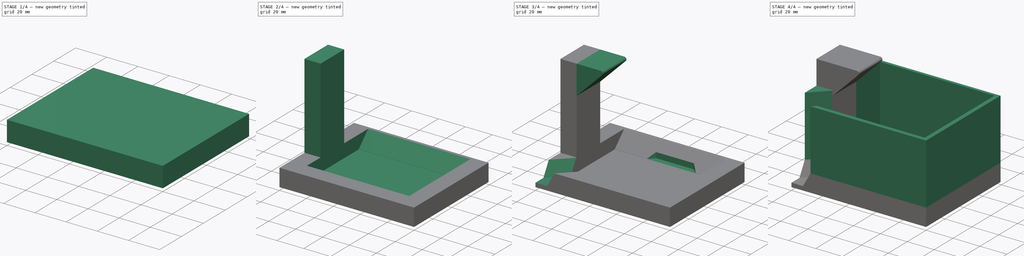
[diagram: build sequence overview — one tinted view per stage of 4, left to right]
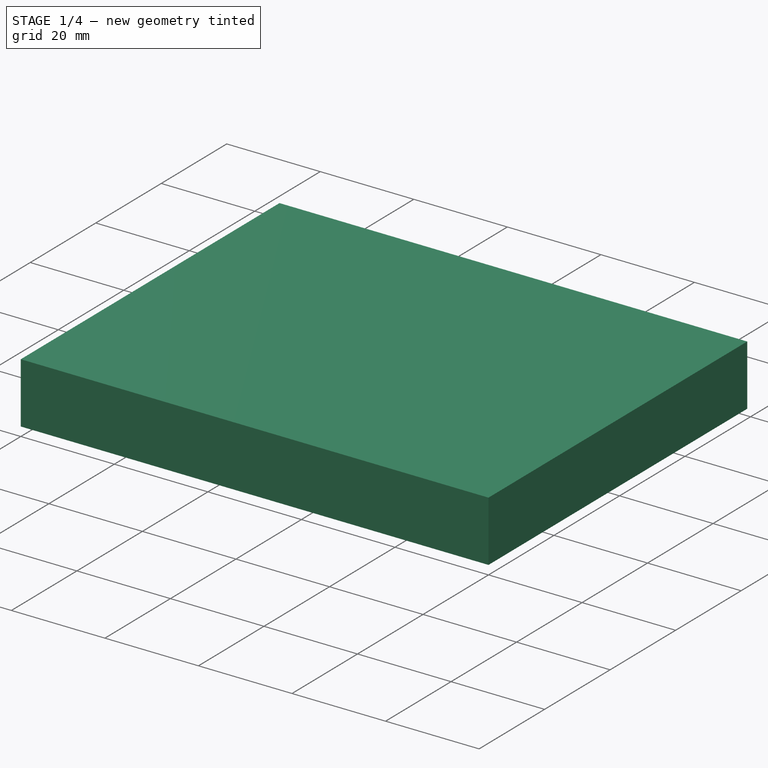
[diagram: stage 1 of 4 — iso view after this stage's code; geometry added in this stage tinted green]
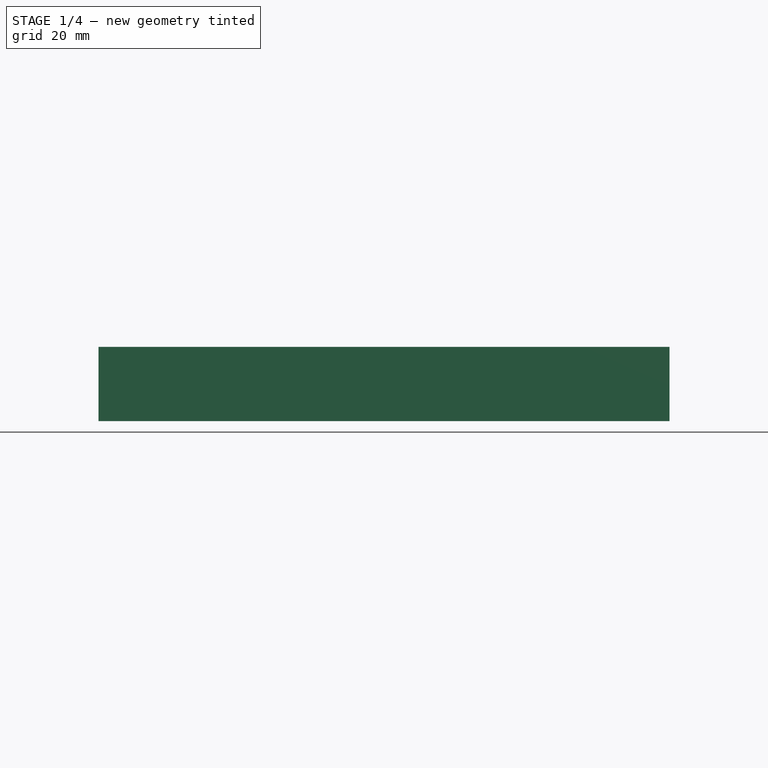
[diagram: stage 1 of 4 — front view after this stage's code; geometry added in this stage tinted green]
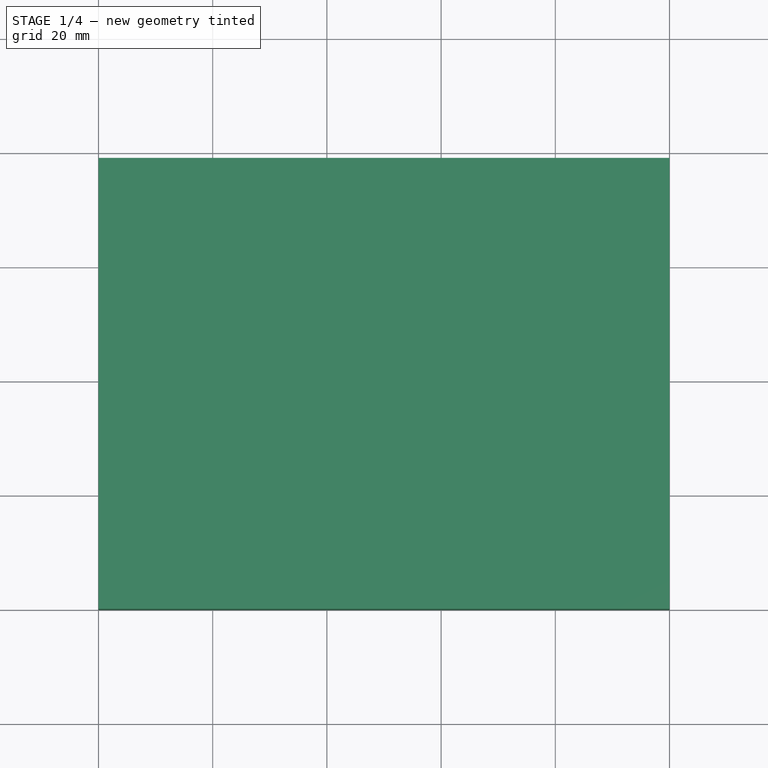
[diagram: stage 1 of 4 — top view after this stage's code; geometry added in this stage tinted green]
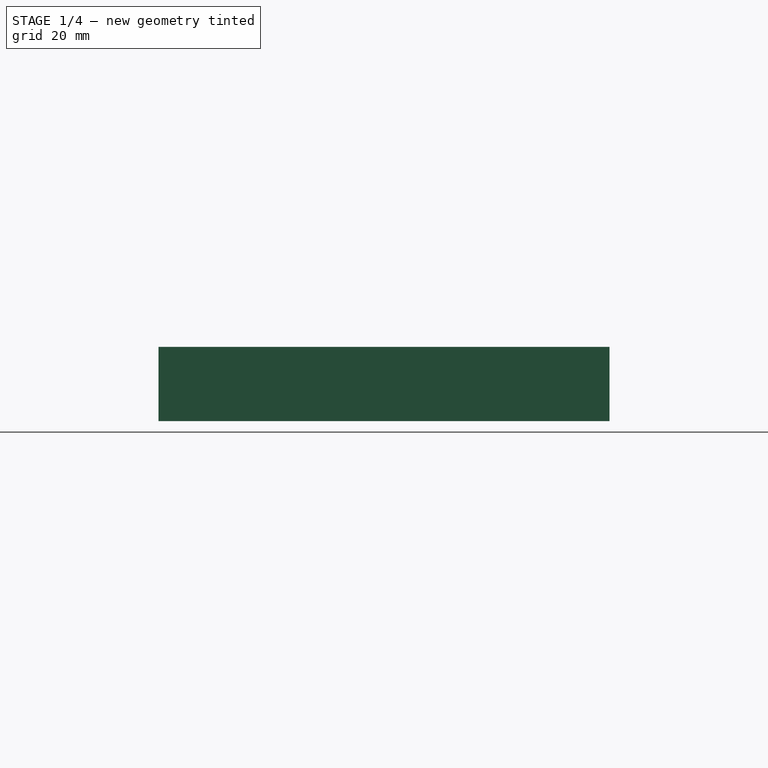
[diagram: stage 1 of 4 — right view after this stage's code; geometry added in this stage tinted green]
FCSTD DOCUMENT  (FreeCAD 0.19R24415 (Git))
Label: bialettiHolderForGrinder
License: All rights reserved
LicenseURL: http://en.wikipedia.org/wiki/All_rights_reserved
objects: Sketcher::SketchObject×7, PartDesign::Pad×5, PartDesign::Pocket×2, PartDesign::Chamfer×2, App::MeasureDistance×2, Spreadsheet::Sheet×1, PartDesign::SubtractiveLoft×1, PartDesign::Body×1
note: 28 computed .brp shape members not serialized (recipe doc carries the construction recipe); baked Part::Feature solids carry a one-line shape summary decoded from their .brp

FEATURE [Spreadsheet::Sheet] Spreadsheet
  cells = A1=bialetti_width; B1(bialetti_width)==66mm; A2=height; B2(height)==76mm - base_thickness; A3=width; B3(width)==79mm; A4=handle_width; B4(handle_width)==25mm; A5=handle_position; B5(handle_position)==40mm; A6=handle_notch_depth; B6(handle_notch_depth)==depth - handle_notch_position - side_thickness; A7=handle_notch_thickness; B7(handle_notch_thickness)==10mm; C7=not used; A8=handle_notch_position; B8(handle_notch_position)==70mm; A9=base_thickness; B9(base_thickness)==3mm; A10=side_height; B10(side_height)==10mm; A11=side_thickness; B11(side_thickness)==12mm; A12=bialetti_position; B12(bialetti_position)==8mm; A13=depth; B13(depth)==100mm; A14=bialett_position_x; B14(bialett_position_x)==depth - 80mm; A15=exit_width; B15(exit_width)==12mm; A16=exit_width_top; B16(exit_width_top)==20mm
FEATURE [Sketcher::SketchObject] Sketch
  FullyConstrained = true
  MapMode = 5
  Support = -> [XY_Plane]
  expr: Constraints[9] = Spreadsheet.width
  expr: Constraints[8] = Spreadsheet.depth
  sketch-geometry (4):
    g0: LineSegment StartX=0 StartY=79 StartZ=0 EndX=100 EndY=79 EndZ=0
    g1: LineSegment StartX=100 StartY=79 StartZ=0 EndX=100 EndY=0 EndZ=0
    g2: LineSegment StartX=100 StartY=0 StartZ=0 EndX=0 EndY=0 EndZ=0
    g3: LineSegment StartX=0 StartY=0 StartZ=0 EndX=0 EndY=79 EndZ=0
  constraints (11):
    c: Coincident(g0,g1)
    c: Coincident(g1,g2)
    c: Coincident(g2,g3)
    c: Coincident(g3,g0)
    c: Horizontal(g0)
    c: Horizontal(g2)
    c: Vertical(g1)
    c: Vertical(g3)
    c: DistanceX(g0,g0) = 100
    c: DistanceY(g3,g3) = 79
    c: Coincident(g2,g-1)
FEATURE [PartDesign::Pad] Pad
  AllowMultiFace = false
  Direction = (1,1,1)
  Length = 3
  Length2 = 100
  Profile = -> Sketch
  Reversed = true
  Type = 0
  expr: Length = Spreadsheet.base_thickness
FEATURE [PartDesign::Pad] Pad001
  AllowMultiFace = false
  BaseFeature = -> Pad
  Direction = (1,1,1)
  Length = 10
  Length2 = 100
  Profile = -> Pad [Face5]
  Type = 0
  expr: Length = Spreadsheet.side_height
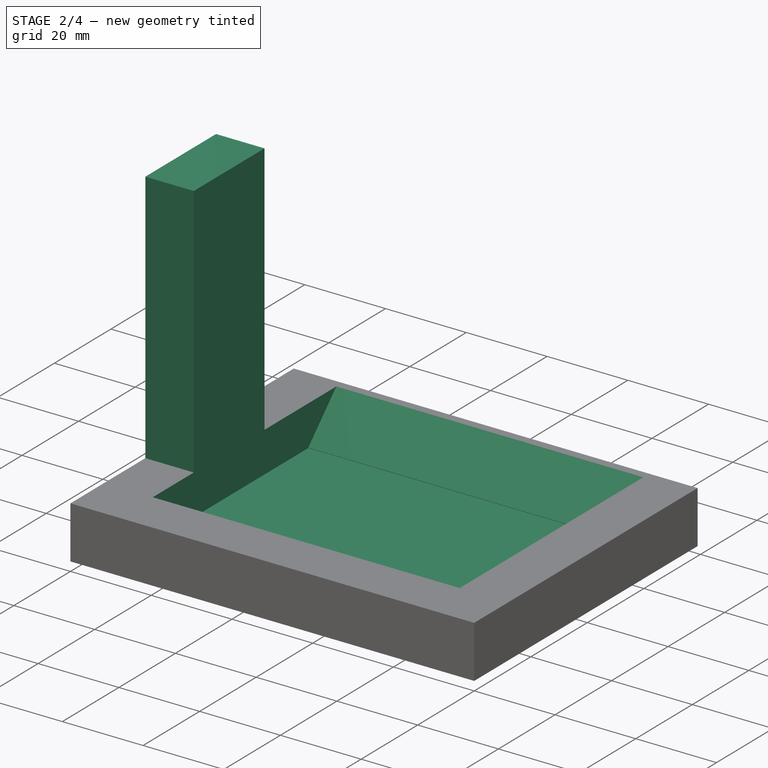
[diagram: stage 2 of 4 — iso view after this stage's code; geometry added in this stage tinted green]
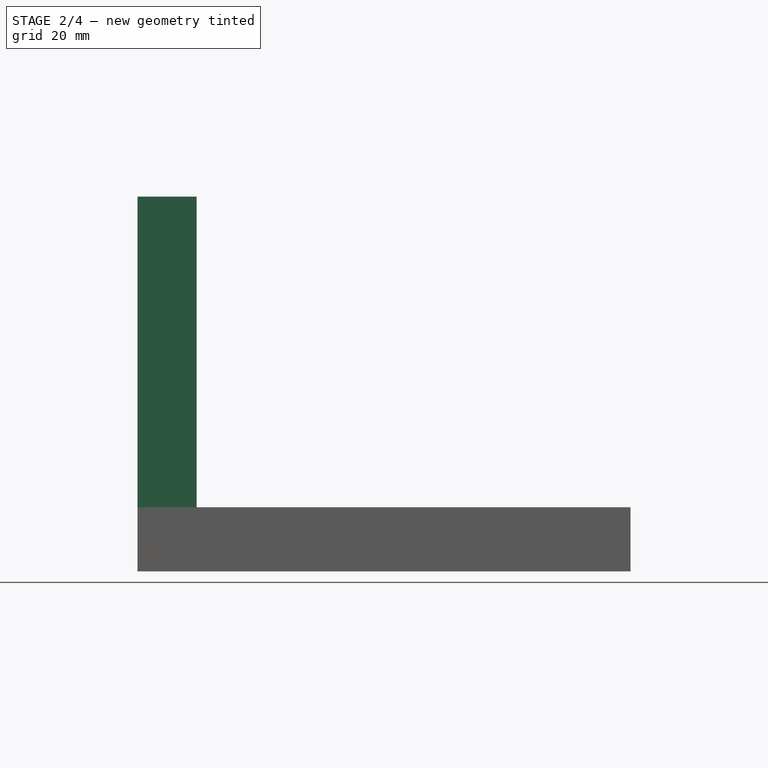
[diagram: stage 2 of 4 — front view after this stage's code; geometry added in this stage tinted green]
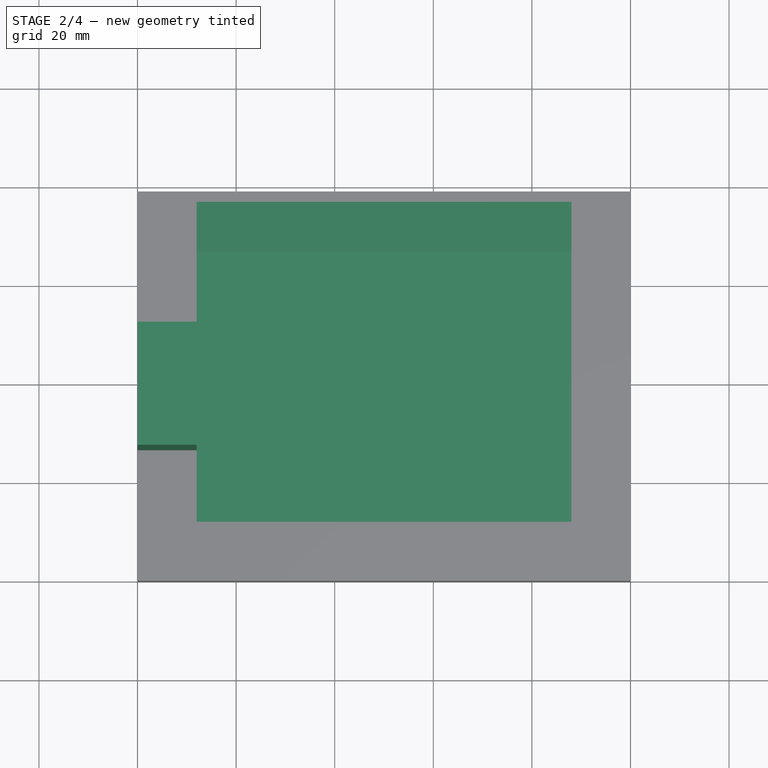
[diagram: stage 2 of 4 — top view after this stage's code; geometry added in this stage tinted green]
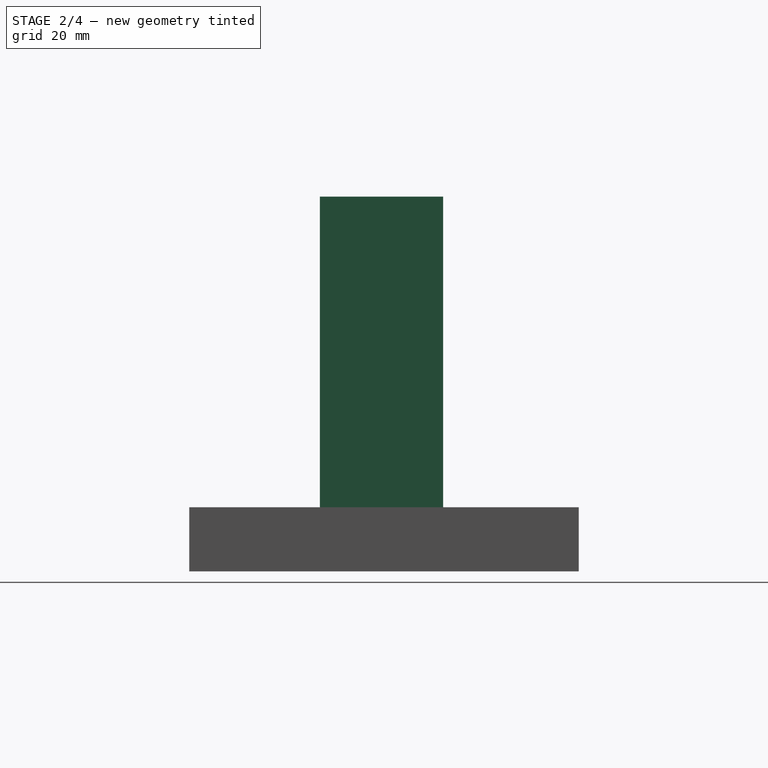
[diagram: stage 2 of 4 — right view after this stage's code; geometry added in this stage tinted green]
FEATURE [Sketcher::SketchObject] Sketch002
  FullyConstrained = true
  MapMode = 5
  Placement = pos=(0,0,10) rot=(0,0,1;0rad)
  Support = -> [Pad001]
  expr: Constraints[10] = Spreadsheet.width - 2 * Spreadsheet.side_thickness
  expr: Constraints[11] = Spreadsheet.depth - 2 * Spreadsheet.side_thickness
  expr: Constraints[9] = Spreadsheet.side_thickness
  expr: Constraints[8] = Spreadsheet.side_thickness
  sketch-geometry (4):
    g0: LineSegment StartX=12 StartY=67 StartZ=0 EndX=88 EndY=67 EndZ=0
    g1: LineSegment StartX=88 StartY=67 StartZ=0 EndX=88 EndY=12 EndZ=0
    g2: LineSegment StartX=88 StartY=12 StartZ=0 EndX=12 EndY=12 EndZ=0
    g3: LineSegment StartX=12 StartY=12 StartZ=0 EndX=12 EndY=67 EndZ=0
  constraints (12):
    c: Coincident(g0,g1)
    c: Coincident(g1,g2)
    c: Coincident(g2,g3)
    c: Coincident(g3,g0)
    c: Horizontal(g0)
    c: Horizontal(g2)
    c: Vertical(g1)
    c: Vertical(g3)
    c: DistanceX(g-1,g2) = 12
    c: DistanceY(g-1,g2) = 12
    c: DistanceY(g3,g3) = 55
    c: DistanceX(g0,g0) = 76
FEATURE [PartDesign::Pocket] Pocket
  AllowMultiFace = false
  BaseFeature = -> Pad001
  Length = 10
  Length2 = 100
  Profile = -> Sketch002
  Type = 0
  expr: Length = Spreadsheet.side_height
FEATURE [Sketcher::SketchObject] Sketch003  label="handle"
  FullyConstrained = true
  MapMode = 5
  Placement = pos=(0,0,10) rot=(0,0,1;0rad)
  Support = -> [Pocket]
  expr: Constraints[10] = Spreadsheet.side_thickness
  expr: Constraints[9] = Spreadsheet.handle_width
  expr: .Constraints.handle_position = Spreadsheet.width - Spreadsheet.handle_position + Spreadsheet.handle_width / 2
  sketch-geometry (4):
    g0: LineSegment StartX=0 StartY=51.5 StartZ=0 EndX=12 EndY=51.5 EndZ=0
    g1: LineSegment StartX=12 StartY=51.5 StartZ=0 EndX=12 EndY=26.5 EndZ=0
    g2: LineSegment StartX=12 StartY=26.5 StartZ=0 EndX=0 EndY=26.5 EndZ=0
    g3: LineSegment StartX=0 StartY=26.5 StartZ=0 EndX=0 EndY=51.5 EndZ=0
  constraints (12):
    c: Coincident(g0,g1)
    c: Coincident(g1,g2)
    c: Coincident(g2,g3)
    c: Coincident(g3,g0)
    c: Horizontal(g0)
    c: Horizontal(g2)
    c: Vertical(g1)
    c: Vertical(g3)
    c: DistanceY(g-1,g0) = 51.5  'handle_position'
    c: DistanceY(g1,g1) = 25
    c: DistanceX(g0,g0) = 12
    c: DistanceX(g2,g-1) = 0
FEATURE [Sketcher::SketchObject] Sketch004
  FullyConstrained = true
  expr: Constraints[23] = Spreadsheet.bialett_position_x
  expr: Constraints[18] = Spreadsheet.width - Spreadsheet.bialetti_position
  expr: Constraints[17] = .Constraints.socket_width
  expr: .Constraints.socket_width = Spreadsheet.bialetti_width + 2mm
  sketch-geometry (8):
    g0: LineSegment StartX=20 StartY=51.0833 StartZ=0 EndX=39.9167 EndY=71 EndZ=0
    g1: LineSegment StartX=39.9167 StartY=71 StartZ=0 EndX=68.0833 EndY=71 EndZ=0
    g2: LineSegment StartX=68.0833 StartY=71 StartZ=0 EndX=88 EndY=51.0833 EndZ=0
    g3: LineSegment StartX=20 StartY=51.0833 StartZ=0 EndX=20 EndY=22.9167 EndZ=0
    g4: LineSegment StartX=20 StartY=22.9167 StartZ=0 EndX=39.9167 EndY=3 EndZ=0
    g5: LineSegment StartX=39.9167 StartY=3 StartZ=0 EndX=68.0833 EndY=3 EndZ=0
    g6: LineSegment StartX=68.0833 StartY=3 StartZ=0 EndX=88 EndY=22.9167 EndZ=0
    g7: LineSegment StartX=88 StartY=22.9167 StartZ=0 EndX=88 EndY=51.0833 EndZ=0
  constraints (24):
    c: Coincident(g0,g1)
    c: Coincident(g1,g2)
    c: Horizontal(g1)
    c: Angle(g0) = 0.785398
    c: Angle(g2) = -0.785398
    c: DistanceX(g0,g2) = 68  'socket_width'
    c: Coincident(g3,g4)
    c: Coincident(g4,g5)
    c: Coincident(g5,g6)
    c: Coincident(g6,g7)
    c: Coincident(g2,g7)
    c: Coincident(g0,g3)
    c: Vertical(g3)
    c: Vertical(g7)
    c: Horizontal(g5)
    c: Angle(g6) = 0.785398
    c: Angle(g4) = -0.785398
    c: DistanceY(g4,g0) = 68
    c: DistanceY(g-1,g0) = 71
    c: Equal(g3,g5)
    c: Equal(g2,g0)
    c: Equal(g1,g3)
    c: Equal(g3,g4)
    c: DistanceX(g3) = 20
FEATURE [Sketcher::SketchObject] Sketch006  label="exit_bottom"
  FullyConstrained = true
  MapMode = 5
  Support = -> [XY_Plane]
  expr: Constraints[9] = <<exit_top>>.Constraints.exit_depth
  expr: Constraints[11] = Spreadsheet.exit_width / 2
  expr: Constraints[8] = Spreadsheet.exit_width
  sketch-geometry (4):
    g0: LineSegment StartX=-4.24264 StartY=4.24264 StartZ=0 EndX=14.8492 EndY=23.3345 EndZ=0
    g1: LineSegment StartX=14.8492 StartY=23.3345 StartZ=0 EndX=23.3345 EndY=14.8492 EndZ=0
    g2: LineSegment StartX=23.3345 StartY=14.8492 StartZ=0 EndX=4.24264 EndY=-4.24264 EndZ=0
    g3: LineSegment StartX=4.24264 StartY=-4.24264 StartZ=0 EndX=-4.24264 EndY=4.24264 EndZ=0
  constraints (12):
    c: Coincident(g0,g1)
    c: Coincident(g1,g2)
    c: Coincident(g2,g3)
    c: Coincident(g3,g0)
    c: Parallel(g2,g0)
    c: Angle(g3,g0) = 1.5708
    c: Angle(g0) = 0.785398
    c: PointOnObject(g-1,g3)
    c: Distance(g3) = 12
    c: Distance(g2) = 27
    c: Parallel(g3,g1)
    c: Distance(g-1,g0) = 6
FEATURE [PartDesign::Chamfer] Chamfer001
  Angle = 45
  Base = -> Pocket [Edge21]
  BaseFeature = -> Pocket
  ChamferType = 0
  FlipDirection = false
  Size = 9.9
  Size2 = 1
  SupportTransform = false
  expr: Size = Spreadsheet.side_height - 0.1mm
FEATURE [PartDesign::Pad] Pad002
  AllowMultiFace = false
  BaseFeature = -> Chamfer001
  Direction = (1,1,1)
  Length = 63
  Length2 = 100
  Profile = -> Sketch003
  Type = 0
  expr: Length = Spreadsheet.height - Spreadsheet.side_height
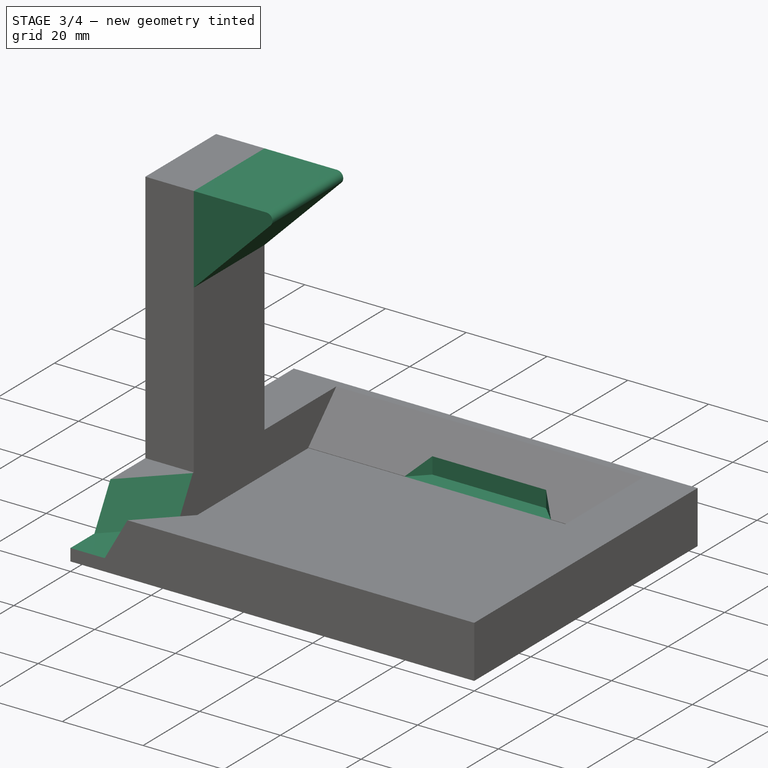
[diagram: stage 3 of 4 — iso view after this stage's code; geometry added in this stage tinted green]
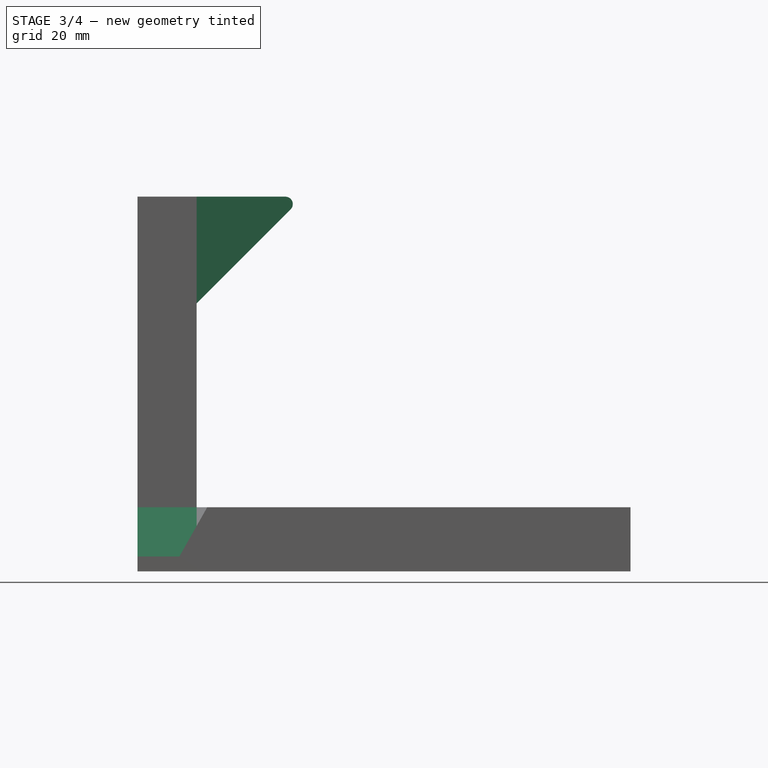
[diagram: stage 3 of 4 — front view after this stage's code; geometry added in this stage tinted green]
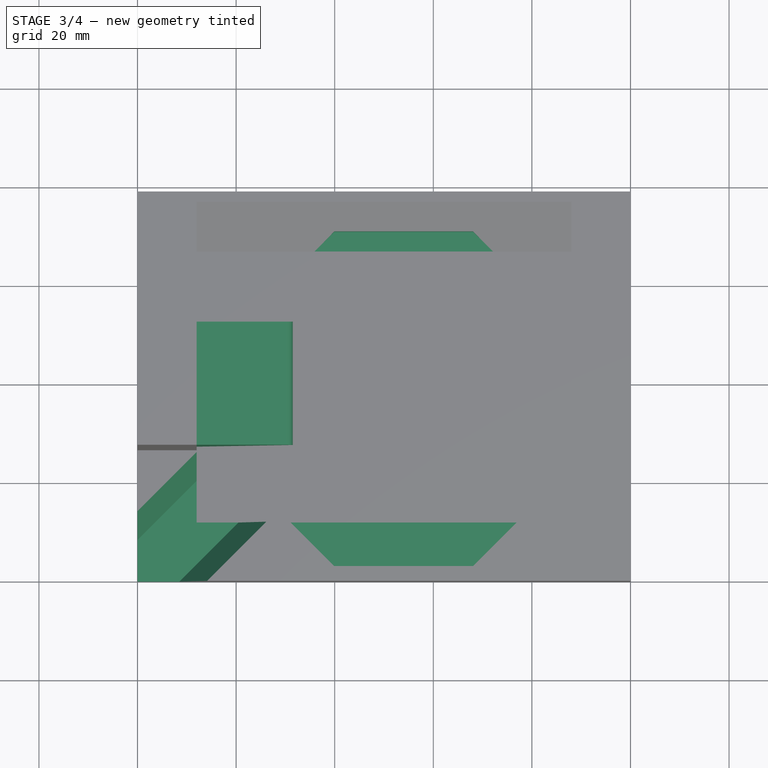
[diagram: stage 3 of 4 — top view after this stage's code; geometry added in this stage tinted green]
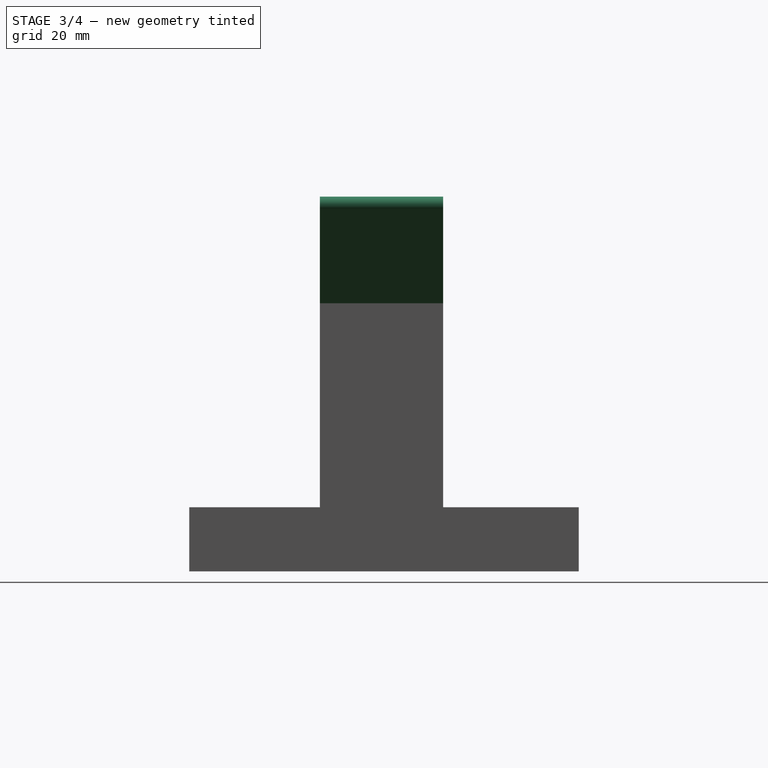
[diagram: stage 3 of 4 — right view after this stage's code; geometry added in this stage tinted green]
FEATURE [PartDesign::Pocket] Pocket001
  AllowMultiFace = false
  BaseFeature = -> Pad002
  Length = 5
  Length2 = 100
  Profile = -> Sketch004
  Reversed = true
  Type = 1
FEATURE [Sketcher::SketchObject] Sketch007  label="exit_top"
  FullyConstrained = true
  Placement = pos=(0,0,10) rot=(0,0,1;0rad)
  Support = -> [XY_Plane]
  expr: .Placement.Base.z = Spreadsheet.side_height
  expr: Constraints[11] = Spreadsheet.exit_width_top / 2
  expr: Constraints[10] = Spreadsheet.exit_width_top
  sketch-geometry (4):
    g0: LineSegment StartX=-7.07107 StartY=7.07107 StartZ=0 EndX=12.0208 EndY=26.163 EndZ=0
    g1: LineSegment StartX=12.0208 StartY=26.163 StartZ=0 EndX=26.163 EndY=12.0208 EndZ=0
    g2: LineSegment StartX=26.163 StartY=12.0208 StartZ=0 EndX=7.07107 EndY=-7.07107 EndZ=0
    g3: LineSegment StartX=7.07107 StartY=-7.07107 StartZ=0 EndX=-7.07107 EndY=7.07107 EndZ=0
  constraints (12):
    c: Coincident(g0,g1)
    c: Coincident(g1,g2)
    c: Coincident(g2,g3)
    c: Coincident(g3,g0)
    c: PointOnObject(g-1,g3)
    c: Angle(g0) = 0.785398
    c: Parallel(g0,g2)
    c: Equal(g0,g2)
    c: Angle(g3,g0) = 1.5708
    c: Distance(g0) = 27  'exit_depth'
    c: Distance(g3) = 20
    c: Distance(g-1,g0) = 10
FEATURE [PartDesign::SubtractiveLoft] SubtractiveLoft
  AllowMultiFace = false
  BaseFeature = -> Pocket001
  Closed = false
  Profile = -> Sketch006
  Ruled = false
  Sections = -> [Sketch007]
FEATURE [Sketcher::SketchObject] Sketch008
  AttachmentOffset = pos=(0,0,-39) rot=(0,0,1;0rad)
  FullyConstrained = true
  MapMode = 5
  Placement = pos=(0,39,8.7e-15) rot=(1,0,0;1.5708rad)
  Support = -> [XZ_Plane]
  expr: .AttachmentOffset.Base.z = -Spreadsheet.width + Spreadsheet.handle_position
  expr: Constraints[7] = Spreadsheet.height
  expr: Constraints[9] = Spreadsheet.handle_notch_depth
  expr: Constraints[6] = Spreadsheet.side_thickness
  sketch-geometry (4):
    g0: LineSegment StartX=12 StartY=73 StartZ=0 EndX=30 EndY=73 EndZ=0
    g1: LineSegment StartX=31.0607 StartY=70.4393 StartZ=0 EndX=12 EndY=51.3787 EndZ=0
    g2: LineSegment StartX=12 StartY=51.3787 StartZ=0 EndX=12 EndY=73 EndZ=0
    g3: ArcOfCircle CenterX=30 CenterY=71.5 CenterZ=0 NormalX=0 NormalY=0 NormalZ=1 AngleXU=0 Radius=1.5 StartAngle=5.49779 EndAngle=7.85398
  constraints (11):
    c: Coincident(g1,g2)
    c: Coincident(g2,g0)
    c: Vertical(g2)
    c: Horizontal(g0)
    c: Tangent(g0,g3) = 1.5708
    c: Tangent(g1,g3) = 1.5708
    c: DistanceX(g-1,g0) = 12
    c: DistanceY(g-1,g0) = 73
    c: Angle(g1,g2) = 0.785398
    c: DistanceX(g0,g0) = 18
    c: Radius(g3) = 1.5
FEATURE [PartDesign::Pad] Pad003
  AllowMultiFace = false
  BaseFeature = -> SubtractiveLoft
  Direction = (1,1,1)
  Length = 25
  Length2 = 100
  Midplane = true
  Profile = -> Sketch008
  Type = 0
  expr: Length = Spreadsheet.handle_width
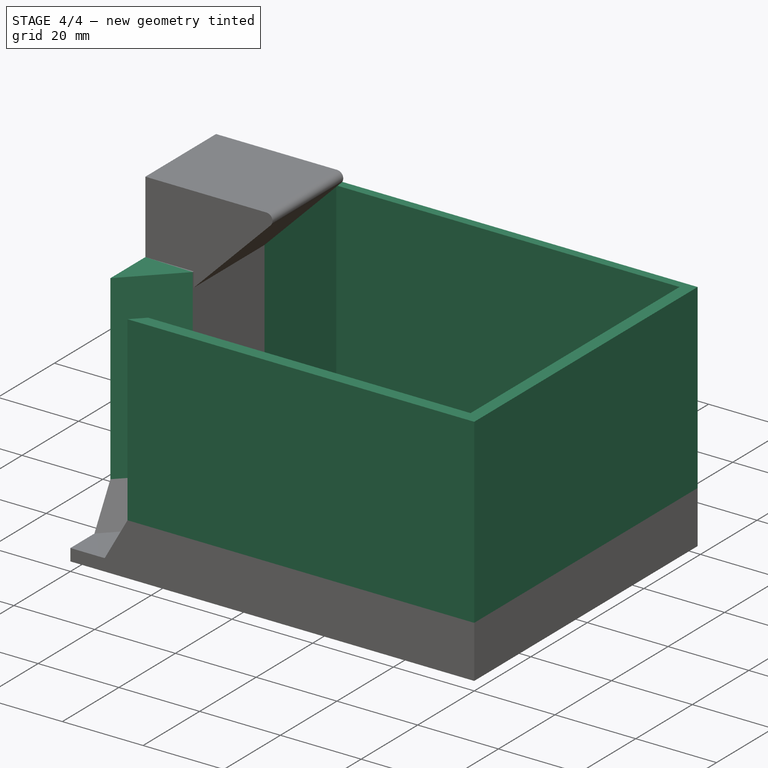
[diagram: stage 4 of 4 — iso view after this stage's code; geometry added in this stage tinted green]
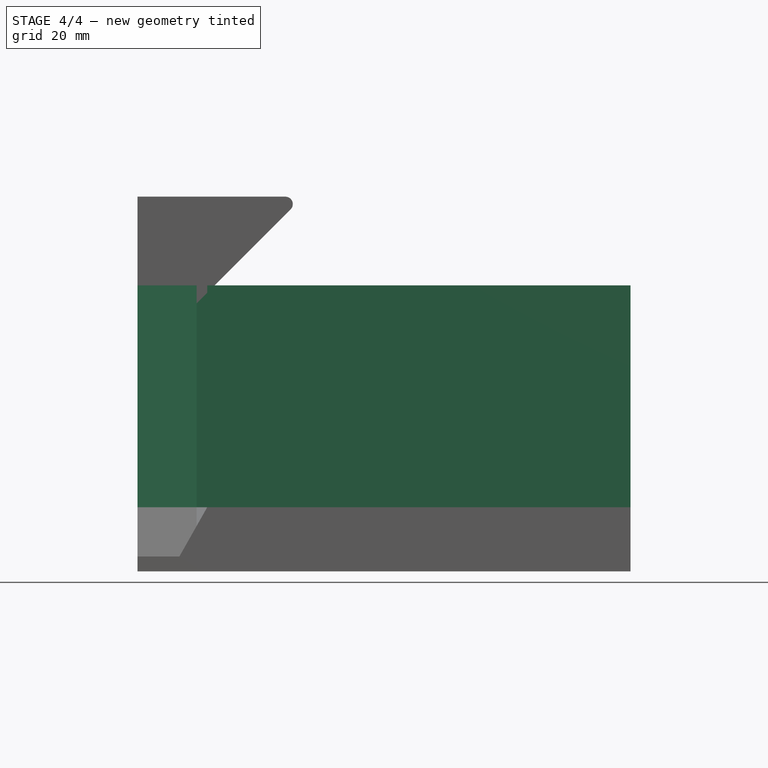
[diagram: stage 4 of 4 — front view after this stage's code; geometry added in this stage tinted green]
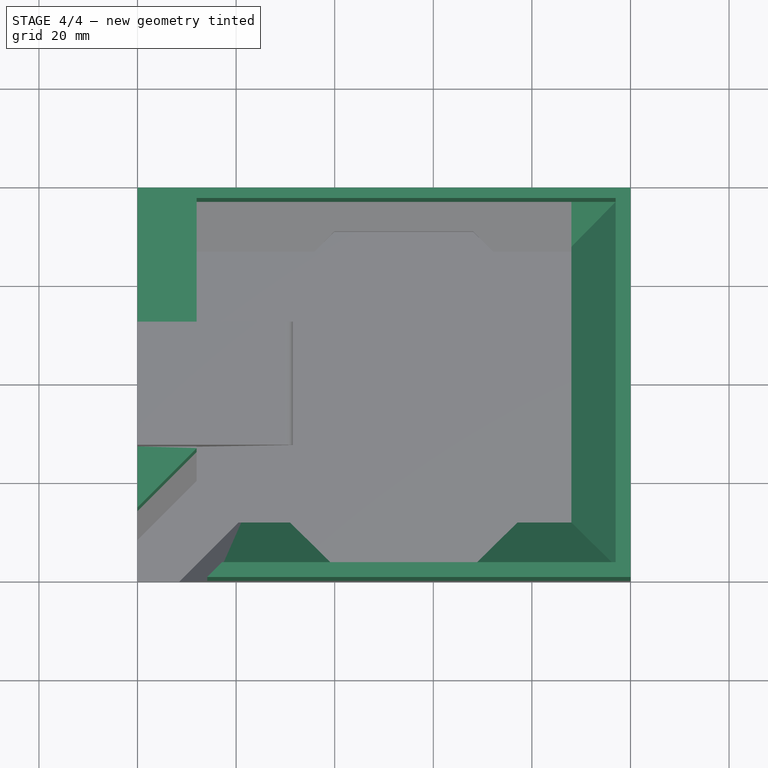
[diagram: stage 4 of 4 — top view after this stage's code; geometry added in this stage tinted green]
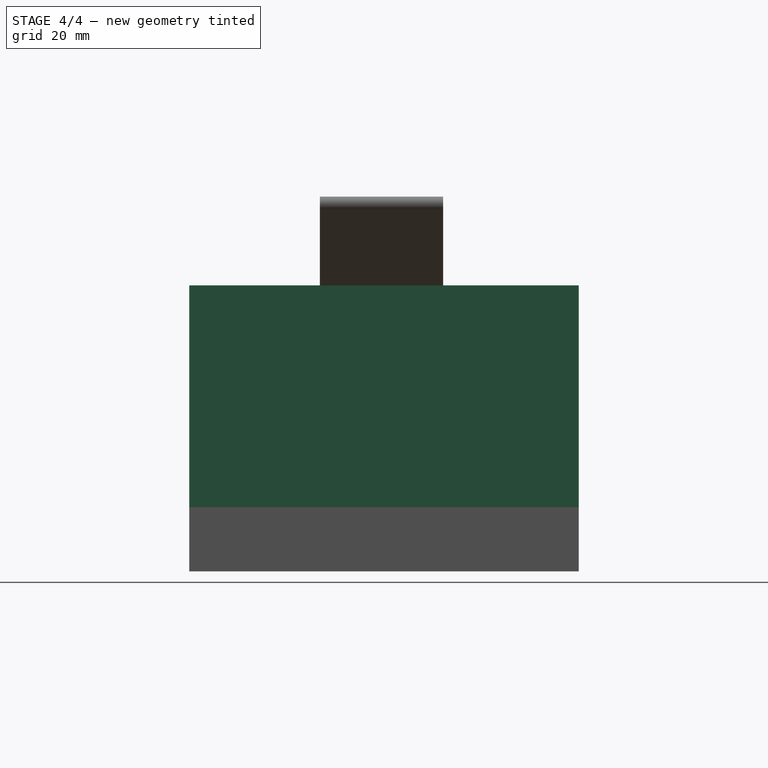
[diagram: stage 4 of 4 — right view after this stage's code; geometry added in this stage tinted green]
FEATURE [App::MeasureDistance] Distance  label="Distance: 76,01 mm"
  Distance = 76.0094
  P1 = (-4e-16,38.5593,73)
  P2 = (-7e-16,39.755,-3)
FEATURE [App::MeasureDistance] Distance001  label="Distance: 68,26 mm"
  Distance = 68.2588
  P1 = (53.6272,71,4.1)
  P2 = (54.3052,3,10)
FEATURE [PartDesign::Chamfer] Chamfer
  Angle = 45
  Base = -> Pad003 [Edge3,Edge4,Edge5,Edge6,Edge7,Edge11]
  BaseFeature = -> Pad003
  ChamferType = 0
  FlipDirection = false
  Size = 9
  Size2 = 1
  SupportTransform = false
FEATURE [PartDesign::Pad] Pad004
  BaseFeature = -> Chamfer
  Direction = (1,1,1)
  Length = 45
  Length2 = 100
  Profile = -> Chamfer [Face29,Face1]
  Type = 0
  expr: Length = 55mm - Spreadsheet.side_height
FEATURE [PartDesign::Body] Body
  Group = -> [Sketch,Pad,Pad001,Sketch002,Pocket,Sketch003,Chamfer001,Pad002,Sketch004,Pocket001,Sketch006,Sketch007,SubtractiveLoft,Sketch008,Pad003,Chamfer,Pad004]
  Origin = -> Origin
  Tip = -> Pad004
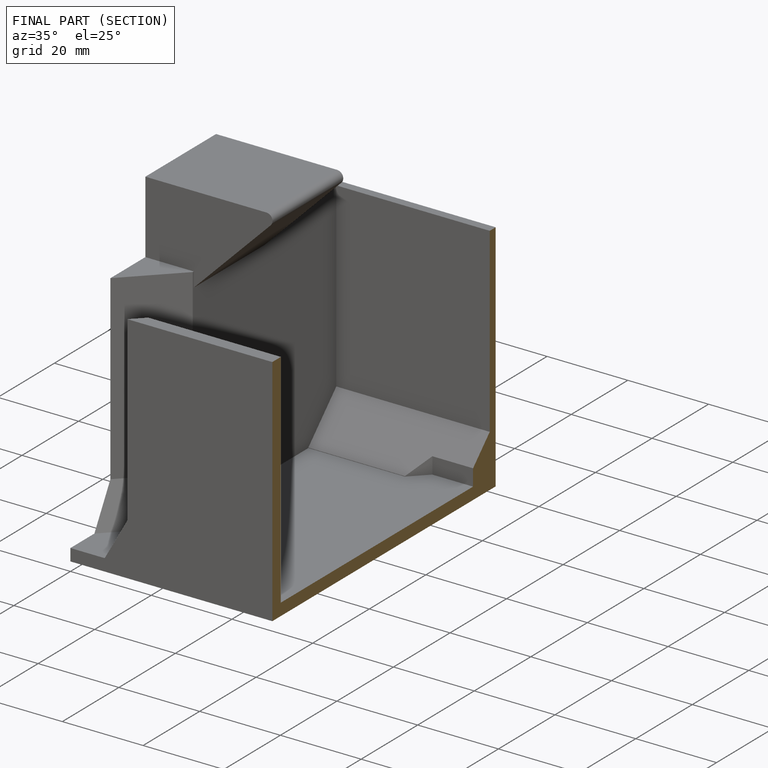
[diagram: finished part — half-section view (interior)]
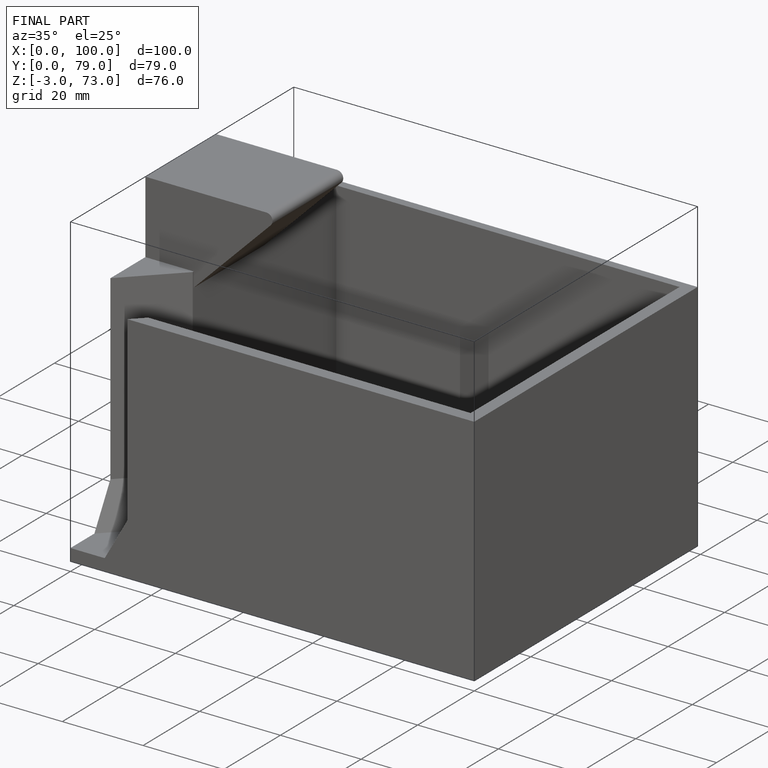
[diagram: finished part — iso view with bounding-box wireframe]
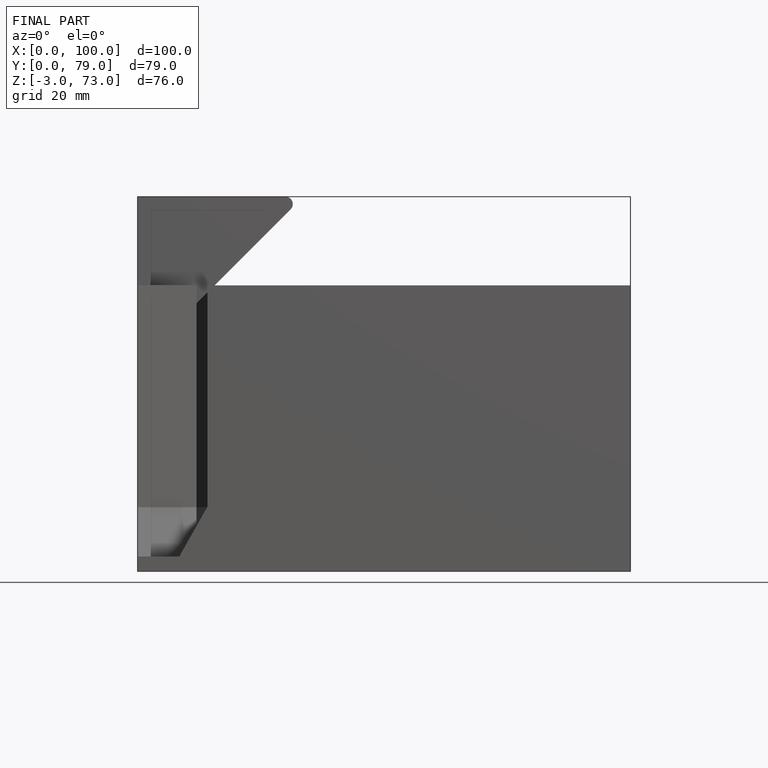
[diagram: finished part — front view with bounding-box wireframe]
